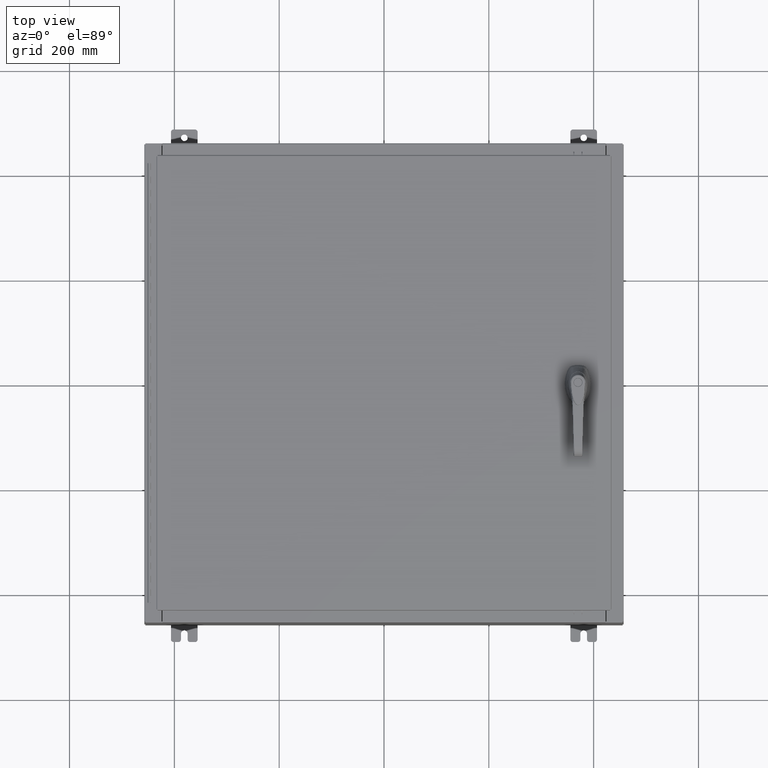
[diagram: clean part render]
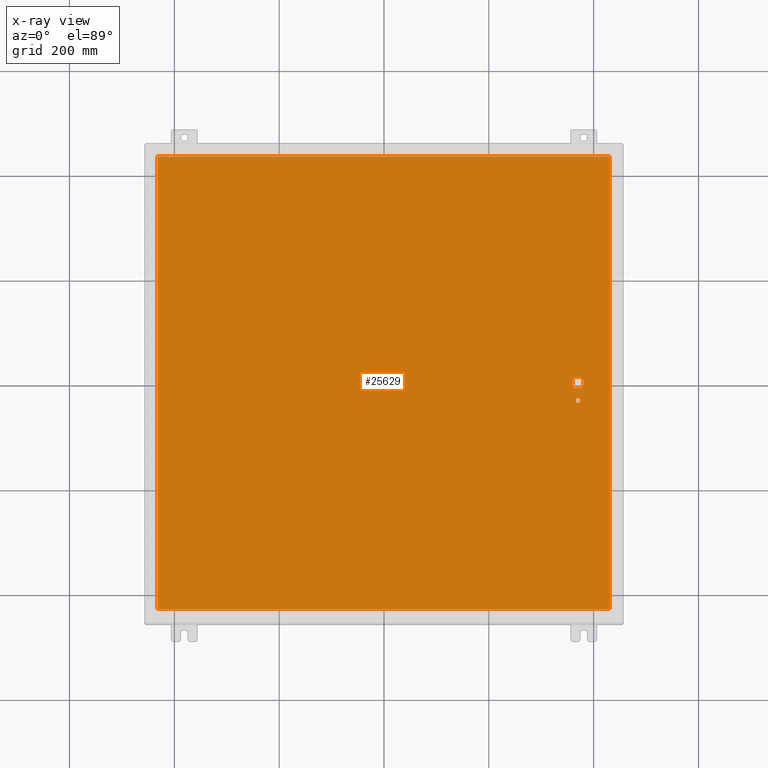
[diagram: x-ray — body ghosted, one internal face saturated and labeled with its STEP entity id]
A machine part, top view, then the same camera in x-ray: the body is ghosted and one INTERNAL B-rep face — a face not visible from any outside direction — is saturated and labeled: STEP entity #25629.
In plain terms, the highlighted planar face has unit normal (0, 0, -1).
Its self-contained STEP definition (entity closure, byte-faithful):
#201 = ORIENTED_EDGE ( 'NONE', *, *, #115261, .T. ) ;
#1171 = AXIS2_PLACEMENT_3D ( 'NONE', #65638, #7719, #75361 ) ;
#1522 = CIRCLE ( 'NONE', #46743, 0.4499999999999168000 ) ;
#1968 = CARTESIAN_POINT ( 'NONE',  ( 16.99029999999999800, 17.00630000000000700, -0.07470000000000000300 ) ) ;
#2199 = CARTESIAN_POINT ( 'NONE',  ( 14.40649999999999800, -1.338000000000000100, -0.07470000000000003000 ) ) ;
#3685 = EDGE_CURVE ( 'NONE', #40585, #65525, #103117, .T. ) ;
#3861 = CARTESIAN_POINT ( 'NONE',  ( 14.98099999999992700, 0.2002273707563075900, -0.07470000000000003000 ) ) ;
#4566 = FACE_BOUND ( 'NONE', #106496, .T. ) ;
#4801 = LINE ( 'NONE', #26252, #27488 ) ;
#7611 = CARTESIAN_POINT ( 'NONE',  ( 16.99029999999999800, -17.00629999999999600, -0.07470000000000019700 ) ) ;
#7719 = DIRECTION ( 'NONE',  ( -0.0000000000000000000, -0.0000000000000000000, 1.000000000000000000 ) ) ;
#8357 = ORIENTED_EDGE ( 'NONE', *, *, #118897, .T. ) ;
#11220 = AXIS2_PLACEMENT_3D ( 'NONE', #51082, #118742, #60777 ) ;
#12176 = AXIS2_PLACEMENT_3D ( 'NONE', #12382, #79965, #22174 ) ;
#12382 = CARTESIAN_POINT ( 'NONE',  ( 14.57799999999999900, 0.0000000000000000000, -0.07470000000000003000 ) ) ;
#13389 = ORIENTED_EDGE ( 'NONE', *, *, #18675, .F. ) ;
#13483 = VERTEX_POINT ( 'NONE', #64764 ) ;
#14712 = VERTEX_POINT ( 'NONE', #73493 ) ;
#14847 = LINE ( 'NONE', #57016, #66236 ) ;
#16709 = LINE ( 'NONE', #7611, #39359 ) ;
#17102 = ORIENTED_EDGE ( 'NONE', *, *, #77878, .F. ) ;
#18675 = EDGE_CURVE ( 'NONE', #87650, #65525, #68024, .T. ) ;
#19914 = DIRECTION ( 'NONE',  ( 0.0000000000000000000, -1.000000000000000000, 0.0000000000000000000 ) ) ;
#20134 = EDGE_CURVE ( 'NONE', #41538, #89148, #99546, .T. ) ;
#20634 = CARTESIAN_POINT ( 'NONE',  ( 16.99029999999999800, -17.00630000000000000, -0.07470000000000000300 ) ) ;
#22174 = DIRECTION ( 'NONE',  ( -1.000000000000000000, -1.776356839400246700E-015, 0.0000000000000000000 ) ) ;
#23405 = EDGE_CURVE ( 'NONE', #43577, #13483, #112281, .T. ) ;
#25629 = ADVANCED_FACE ( 'NONE', ( #4566, #30288, #52950 ), #50704, .T. ) ;
#26252 = CARTESIAN_POINT ( 'NONE',  ( 16.99029999999999800, 17.00630000000000700, -0.07469999999999910000 ) ) ;
#27103 = DIRECTION ( 'NONE',  ( 0.0000000000000000000, 1.000000000000000000, 0.0000000000000000000 ) ) ;
#27488 = VECTOR ( 'NONE', #35965, 39.37007874015748100 ) ;
#28189 = VECTOR ( 'NONE', #112997, 39.37007874015748100 ) ;
#28754 = CARTESIAN_POINT ( 'NONE',  ( 14.57799999999999900, 0.0000000000000000000, -0.07470000000000003000 ) ) ;
#28959 = CARTESIAN_POINT ( 'NONE',  ( 0.0000000000000000000, 0.4029999999999252000, -0.07470000000000003000 ) ) ;
#30288 = FACE_OUTER_BOUND ( 'NONE', #59682, .T. ) ;
#30778 = CARTESIAN_POINT ( 'NONE',  ( 14.57799999999999900, 0.0000000000000000000, -0.07470000000000003000 ) ) ;
#31265 = AXIS2_PLACEMENT_3D ( 'NONE', #43651, #112839, #106841 ) ;
#31738 = DIRECTION ( 'NONE',  ( -1.000000000000000000, 0.0000000000000000000, -0.0000000000000000000 ) ) ;
#32766 = AXIS2_PLACEMENT_3D ( 'NONE', #30778, #98364, #40443 ) ;
#34180 = CARTESIAN_POINT ( 'NONE',  ( 14.77822737075630900, -0.4029999999999252000, -0.07470000000000003000 ) ) ;
#35965 = DIRECTION ( 'NONE',  ( -1.000000000000000000, -0.0000000000000000000, -0.0000000000000000000 ) ) ;
#36374 = VERTEX_POINT ( 'NONE', #43260 ) ;
#38455 = DIRECTION ( 'NONE',  ( -1.000000000000000000, -5.329070518200740300E-015, 0.0000000000000000000 ) ) ;
#39261 = VECTOR ( 'NONE', #56302, 39.37007874015748100 ) ;
#39359 = VECTOR ( 'NONE', #27103, 39.37007874015748100 ) ;
#40443 = DIRECTION ( 'NONE',  ( -1.000000000000000000, -5.329070518200740300E-015, 0.0000000000000000000 ) ) ;
#40585 = VERTEX_POINT ( 'NONE', #34180 ) ;
#41538 = VERTEX_POINT ( 'NONE', #47848 ) ;
#43260 = CARTESIAN_POINT ( 'NONE',  ( 14.17500000000007400, 0.2002273707563075900, -0.07470000000000003000 ) ) ;
#43577 = VERTEX_POINT ( 'NONE', #80672 ) ;
#43651 = CARTESIAN_POINT ( 'NONE',  ( 14.57799999999999900, 0.0000000000000000000, -0.07470000000000003000 ) ) ;
#46315 = CARTESIAN_POINT ( 'NONE',  ( 14.17500000000007400, -0.2002273707563079800, -0.07470000000000003000 ) ) ;
#46743 = AXIS2_PLACEMENT_3D ( 'NONE', #28754, #96365, #38455 ) ;
#47848 = CARTESIAN_POINT ( 'NONE',  ( 14.77822737075630900, 0.4029999999999250300, -0.07470000000000003000 ) ) ;
#48586 = CARTESIAN_POINT ( 'NONE',  ( 14.17500000000007400, 0.0000000000000000000, -0.07470000000000003000 ) ) ;
#48787 = CIRCLE ( 'NONE', #32766, 0.4499999999999168000 ) ;
#50594 = VERTEX_POINT ( 'NONE', #116290 ) ;
#50704 = PLANE ( 'NONE',  #106944 ) ;
#51082 = CARTESIAN_POINT ( 'NONE',  ( 14.57799999999999900, -1.338000000000000100, -0.07470000000000003000 ) ) ;
#52950 = FACE_BOUND ( 'NONE', #109265, .T. ) ;
#53635 = ORIENTED_EDGE ( 'NONE', *, *, #105542, .F. ) ;
#56302 = DIRECTION ( 'NONE',  ( 5.457491617345625800E-015, -1.000000000000000000, 0.0000000000000000000 ) ) ;
#57016 = CARTESIAN_POINT ( 'NONE',  ( -16.99029999999999800, -17.00630000000000000, -0.07470000000000019700 ) ) ;
#57870 = ORIENTED_EDGE ( 'NONE', *, *, #109920, .T. ) ;
#59682 = EDGE_LOOP ( 'NONE', ( #78187, #17102, #74736, #53635 ) ) ;
#60777 = DIRECTION ( 'NONE',  ( -1.000000000000000000, 0.0000000000000000000, 0.0000000000000000000 ) ) ;
#64764 = CARTESIAN_POINT ( 'NONE',  ( -16.99029999999999800, -17.00630000000000000, -0.07470000000000000300 ) ) ;
#65525 = VERTEX_POINT ( 'NONE', #79858 ) ;
#65638 = CARTESIAN_POINT ( 'NONE',  ( 14.57799999999999900, -1.338000000000000100, -0.07470000000000003000 ) ) ;
#66236 = VECTOR ( 'NONE', #66752, 39.37007874015748100 ) ;
#66260 = CARTESIAN_POINT ( 'NONE',  ( -16.99029999999999400, 17.00630000000000300, -0.07470000000000019700 ) ) ;
#66439 = ORIENTED_EDGE ( 'NONE', *, *, #100702, .T. ) ;
#66752 = DIRECTION ( 'NONE',  ( 1.000000000000000000, -0.0000000000000000000, -0.0000000000000000000 ) ) ;
#68024 = LINE ( 'NONE', #95192, #39261 ) ;
#71503 = EDGE_CURVE ( 'NONE', #50594, #71719, #108502, .T. ) ;
#71719 = VERTEX_POINT ( 'NONE', #2199 ) ;
#73493 = CARTESIAN_POINT ( 'NONE',  ( 14.37777262924369000, -0.4029999999999250300, -0.07470000000000003000 ) ) ;
#73851 = VECTOR ( 'NONE', #96580, 39.37007874015748100 ) ;
#74736 = ORIENTED_EDGE ( 'NONE', *, *, #23405, .F. ) ;
#75361 = DIRECTION ( 'NONE',  ( -1.000000000000000000, 0.0000000000000000000, 0.0000000000000000000 ) ) ;
#75498 = VECTOR ( 'NONE', #19914, 39.37007874015748100 ) ;
#75975 = DIRECTION ( 'NONE',  ( 0.0000000000000000000, -1.000000000000000000, 0.0000000000000000000 ) ) ;
#77878 = EDGE_CURVE ( 'NONE', #13483, #97366, #14847, .T. ) ;
#78187 = ORIENTED_EDGE ( 'NONE', *, *, #108310, .F. ) ;
#79858 = CARTESIAN_POINT ( 'NONE',  ( 14.98099999999992700, -0.2002273707563067300, -0.07470000000000003000 ) ) ;
#79965 = DIRECTION ( 'NONE',  ( -0.0000000000000000000, -0.0000000000000000000, 1.000000000000000000 ) ) ;
#80672 = CARTESIAN_POINT ( 'NONE',  ( -16.99029999999999400, 17.00630000000000700, -0.07470000000000000300 ) ) ;
#82609 = LINE ( 'NONE', #122716, #28189 ) ;
#86175 = ORIENTED_EDGE ( 'NONE', *, *, #122341, .T. ) ;
#86498 = VECTOR ( 'NONE', #75975, 39.37007874015748100 ) ;
#87650 = VERTEX_POINT ( 'NONE', #3861 ) ;
#87799 = CIRCLE ( 'NONE', #11220, 0.1715000000000011500 ) ;
#89148 = VERTEX_POINT ( 'NONE', #96915 ) ;
#89619 = DIRECTION ( 'NONE',  ( 0.0000000000000000000, 0.0000000000000000000, -1.000000000000000000 ) ) ;
#90575 = CIRCLE ( 'NONE', #12176, 0.4499999999999168000 ) ;
#92943 = VERTEX_POINT ( 'NONE', #46315 ) ;
#95192 = CARTESIAN_POINT ( 'NONE',  ( 14.98099999999992700, 8.175868191945441800E-014, -0.07470000000000003000 ) ) ;
#96365 = DIRECTION ( 'NONE',  ( -0.0000000000000000000, -0.0000000000000000000, 1.000000000000000000 ) ) ;
#96580 = DIRECTION ( 'NONE',  ( -1.000000000000000000, 0.0000000000000000000, 0.0000000000000000000 ) ) ;
#96915 = CARTESIAN_POINT ( 'NONE',  ( 14.37777262924369000, 0.4029999999999252000, -0.07470000000000003000 ) ) ;
#97366 = VERTEX_POINT ( 'NONE', #20634 ) ;
#98364 = DIRECTION ( 'NONE',  ( -0.0000000000000000000, -0.0000000000000000000, 1.000000000000000000 ) ) ;
#99546 = LINE ( 'NONE', #28959, #73851 ) ;
#100130 = ORIENTED_EDGE ( 'NONE', *, *, #3685, .T. ) ;
#100702 = EDGE_CURVE ( 'NONE', #14712, #40585, #82609, .T. ) ;
#101252 = LINE ( 'NONE', #48586, #75498 ) ;
#103117 = CIRCLE ( 'NONE', #31265, 0.4499999999999168000 ) ;
#105542 = EDGE_CURVE ( 'NONE', #110486, #43577, #4801, .T. ) ;
#106496 = EDGE_LOOP ( 'NONE', ( #117417, #86175 ) ) ;
#106841 = DIRECTION ( 'NONE',  ( -1.000000000000000000, -1.776356839400246700E-015, 0.0000000000000000000 ) ) ;
#106944 = AXIS2_PLACEMENT_3D ( 'NONE', #118374, #89619, #31738 ) ;
#107241 = EDGE_CURVE ( 'NONE', #87650, #41538, #1522, .T. ) ;
#108225 = ORIENTED_EDGE ( 'NONE', *, *, #20134, .T. ) ;
#108310 = EDGE_CURVE ( 'NONE', #97366, #110486, #16709, .T. ) ;
#108502 = CIRCLE ( 'NONE', #1171, 0.1715000000000011500 ) ;
#109265 = EDGE_LOOP ( 'NONE', ( #100130, #13389, #123036, #108225, #201, #8357, #57870, #66439 ) ) ;
#109920 = EDGE_CURVE ( 'NONE', #92943, #14712, #90575, .T. ) ;
#110486 = VERTEX_POINT ( 'NONE', #1968 ) ;
#112281 = LINE ( 'NONE', #66260, #86498 ) ;
#112839 = DIRECTION ( 'NONE',  ( -0.0000000000000000000, -0.0000000000000000000, 1.000000000000000000 ) ) ;
#112997 = DIRECTION ( 'NONE',  ( 1.000000000000000000, 0.0000000000000000000, 0.0000000000000000000 ) ) ;
#115261 = EDGE_CURVE ( 'NONE', #89148, #36374, #48787, .T. ) ;
#116290 = CARTESIAN_POINT ( 'NONE',  ( 14.74950000000000100, -1.338000000000000100, -0.07470000000000003000 ) ) ;
#117417 = ORIENTED_EDGE ( 'NONE', *, *, #71503, .T. ) ;
#118374 = CARTESIAN_POINT ( 'NONE',  ( 0.0000000000000000000, 0.0000000000000000000, -0.07470000000000000300 ) ) ;
#118742 = DIRECTION ( 'NONE',  ( -0.0000000000000000000, -0.0000000000000000000, 1.000000000000000000 ) ) ;
#118897 = EDGE_CURVE ( 'NONE', #36374, #92943, #101252, .T. ) ;
#122341 = EDGE_CURVE ( 'NONE', #71719, #50594, #87799, .T. ) ;
#122716 = CARTESIAN_POINT ( 'NONE',  ( 0.0000000000000000000, -0.4029999999999252000, -0.07470000000000003000 ) ) ;
#123036 = ORIENTED_EDGE ( 'NONE', *, *, #107241, .T. ) ;